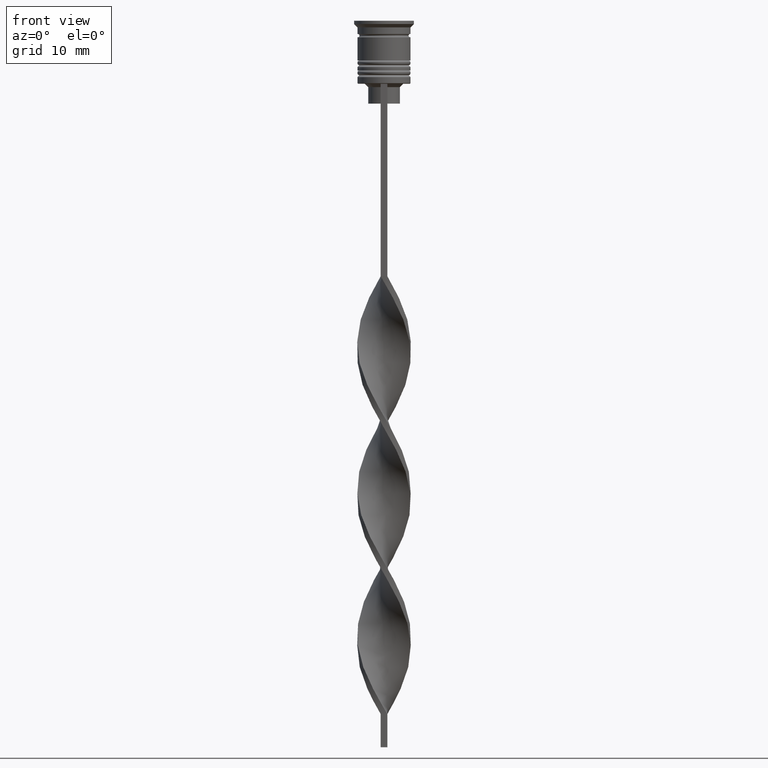
[diagram: clean part render]
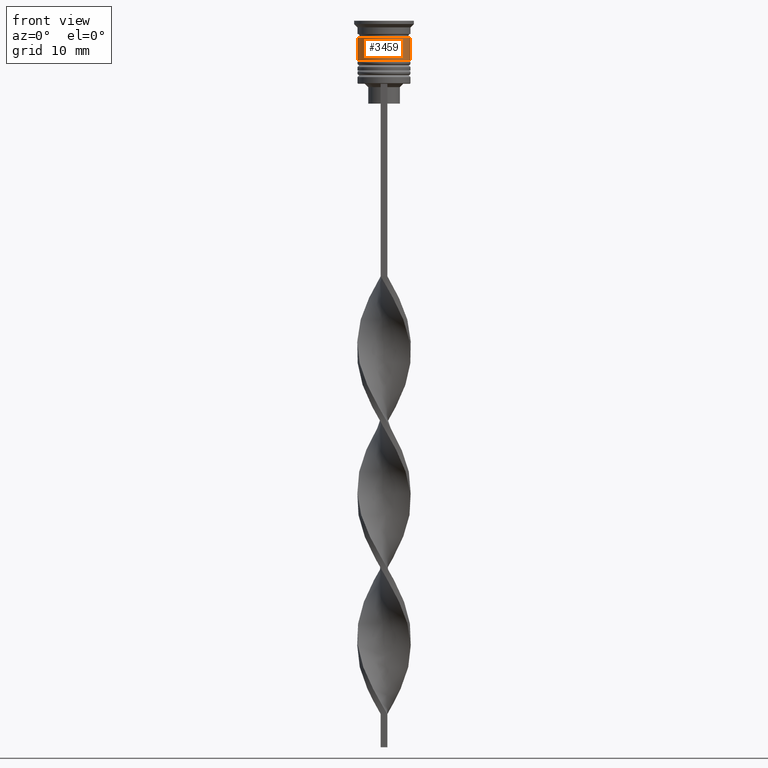
[diagram: same view with one face highlighted and labeled with its STEP entity id]
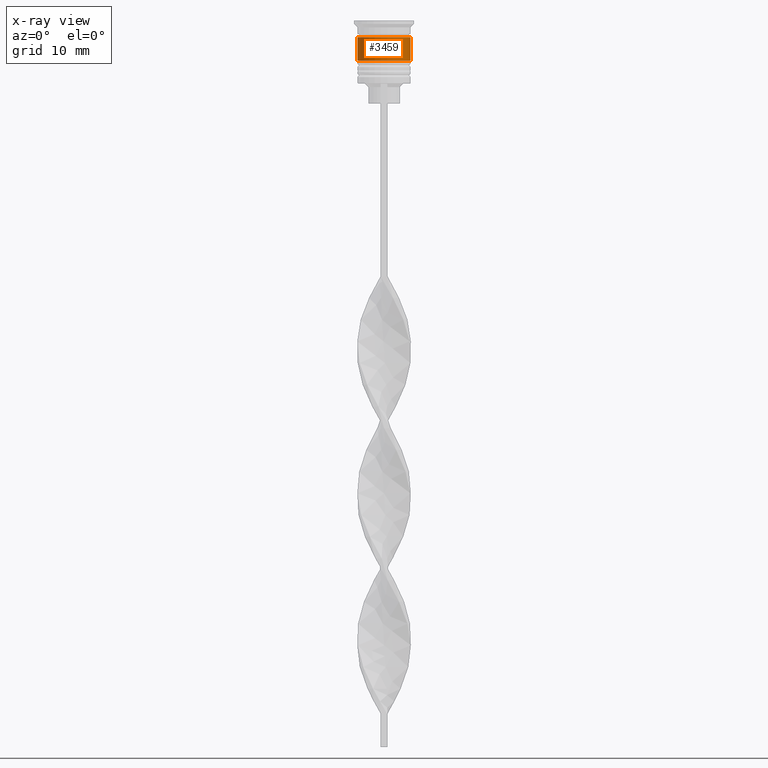
[diagram: x-ray of the same camera — body ghosted, the highlighted face saturated]
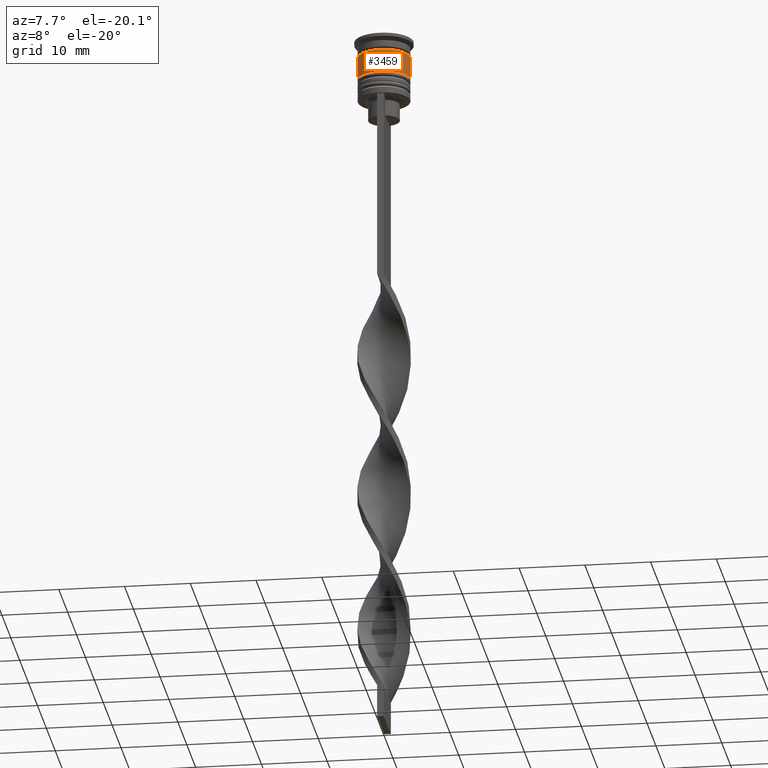
[diagram: same view with one face highlighted and labeled with its STEP entity id]
A machine part, front view. The second image highlights one B-rep face of the part: STEP entity #3459.
The next image is the same camera in x-ray: the body ghosted, the highlighted face saturated — about 0% of this face is hidden behind the body in this view.
A second angle (auxiliary view) of the same face is appended — the face is thin or edge-on in the first view.
In plain terms, the highlighted cylindrical surface (edge-blend (fillet) strip) has radius 4 mm, axis along (-0, -0, 1).
Its self-contained STEP definition (entity closure, byte-faithful):
#20 = EDGE_LOOP ( 'NONE', ( #1081, #34, #87, #3367 ) ) ;
#34 = ORIENTED_EDGE ( 'NONE', *, *, #2925, .T. ) ;
#87 = ORIENTED_EDGE ( 'NONE', *, *, #599, .T. ) ;
#142 = CARTESIAN_POINT ( 'NONE',  ( -4.000000000000000888, 4.898587196589413815E-16, -6.000000000000000000 ) ) ;
#291 = CARTESIAN_POINT ( 'NONE',  ( -4.000000000000000000, 4.898587196589412829E-16, -2.500000000000000000 ) ) ;
#408 = DIRECTION ( 'NONE',  ( 1.000000000000000000, 0.000000000000000000, 0.000000000000000000 ) ) ;
#435 = CARTESIAN_POINT ( 'NONE',  ( 4.000000000000000000, 0.000000000000000000, 0.000000000000000000 ) ) ;
#450 = VERTEX_POINT ( 'NONE', #3061 ) ;
#599 = EDGE_CURVE ( 'NONE', #450, #2853, #2736, .T. ) ;
#675 = CYLINDRICAL_SURFACE ( 'NONE', #943, 4.000000000000000000 ) ;
#695 = DIRECTION ( 'NONE',  ( 1.000000000000000000, 0.000000000000000000, 0.000000000000000000 ) ) ;
#943 = AXIS2_PLACEMENT_3D ( 'NONE', #1254, #3225, #695 ) ;
#1004 = AXIS2_PLACEMENT_3D ( 'NONE', #2405, #3252, #408 ) ;
#1081 = ORIENTED_EDGE ( 'NONE', *, *, #2699, .F. ) ;
#1234 = FACE_OUTER_BOUND ( 'NONE', #20, .T. ) ;
#1254 = CARTESIAN_POINT ( 'NONE',  ( 0.000000000000000000, 0.000000000000000000, 0.000000000000000000 ) ) ;
#1298 = CIRCLE ( 'NONE', #1004, 4.000000000000000888 ) ;
#1484 = CARTESIAN_POINT ( 'NONE',  ( 4.000000000000000000, 0.000000000000000000, -2.500000000000000000 ) ) ;
#1903 = DIRECTION ( 'NONE',  ( -0.000000000000000000, -0.000000000000000000, 1.000000000000000000 ) ) ;
#1907 = CARTESIAN_POINT ( 'NONE',  ( 0.000000000000000000, 0.000000000000000000, -2.500000000000000000 ) ) ;
#2163 = DIRECTION ( 'NONE',  ( -0.000000000000000000, -0.000000000000000000, 1.000000000000000000 ) ) ;
#2177 = DIRECTION ( 'NONE',  ( -0.000000000000000000, -0.000000000000000000, 1.000000000000000000 ) ) ;
#2343 = VERTEX_POINT ( 'NONE', #291 ) ;
#2405 = CARTESIAN_POINT ( 'NONE',  ( 0.000000000000000000, 0.000000000000000000, -6.000000000000000000 ) ) ;
#2601 = VERTEX_POINT ( 'NONE', #142 ) ;
#2699 = EDGE_CURVE ( 'NONE', #2601, #2343, #3013, .T. ) ;
#2732 = DIRECTION ( 'NONE',  ( 1.000000000000000000, 0.000000000000000000, 0.000000000000000000 ) ) ;
#2736 = LINE ( 'NONE', #435, #3335 ) ;
#2853 = VERTEX_POINT ( 'NONE', #1484 ) ;
#2925 = EDGE_CURVE ( 'NONE', #2601, #450, #1298, .T. ) ;
#3013 = LINE ( 'NONE', #3304, #3638 ) ;
#3061 = CARTESIAN_POINT ( 'NONE',  ( 4.000000000000000888, 0.000000000000000000, -6.000000000000000000 ) ) ;
#3225 = DIRECTION ( 'NONE',  ( -0.000000000000000000, -0.000000000000000000, 1.000000000000000000 ) ) ;
#3234 = AXIS2_PLACEMENT_3D ( 'NONE', #1907, #2177, #2732 ) ;
#3252 = DIRECTION ( 'NONE',  ( -0.000000000000000000, -0.000000000000000000, 1.000000000000000000 ) ) ;
#3304 = CARTESIAN_POINT ( 'NONE',  ( -4.000000000000000000, 4.898587196589412829E-16, 0.000000000000000000 ) ) ;
#3335 = VECTOR ( 'NONE', #2163, 1000.000000000000000 ) ;
#3367 = ORIENTED_EDGE ( 'NONE', *, *, #3584, .F. ) ;
#3414 = CIRCLE ( 'NONE', #3234, 4.000000000000000000 ) ;
#3459 = ADVANCED_FACE ( 'NONE', ( #1234 ), #675, .T. ) ;
#3584 = EDGE_CURVE ( 'NONE', #2343, #2853, #3414, .T. ) ;
#3638 = VECTOR ( 'NONE', #1903, 1000.000000000000000 ) ;